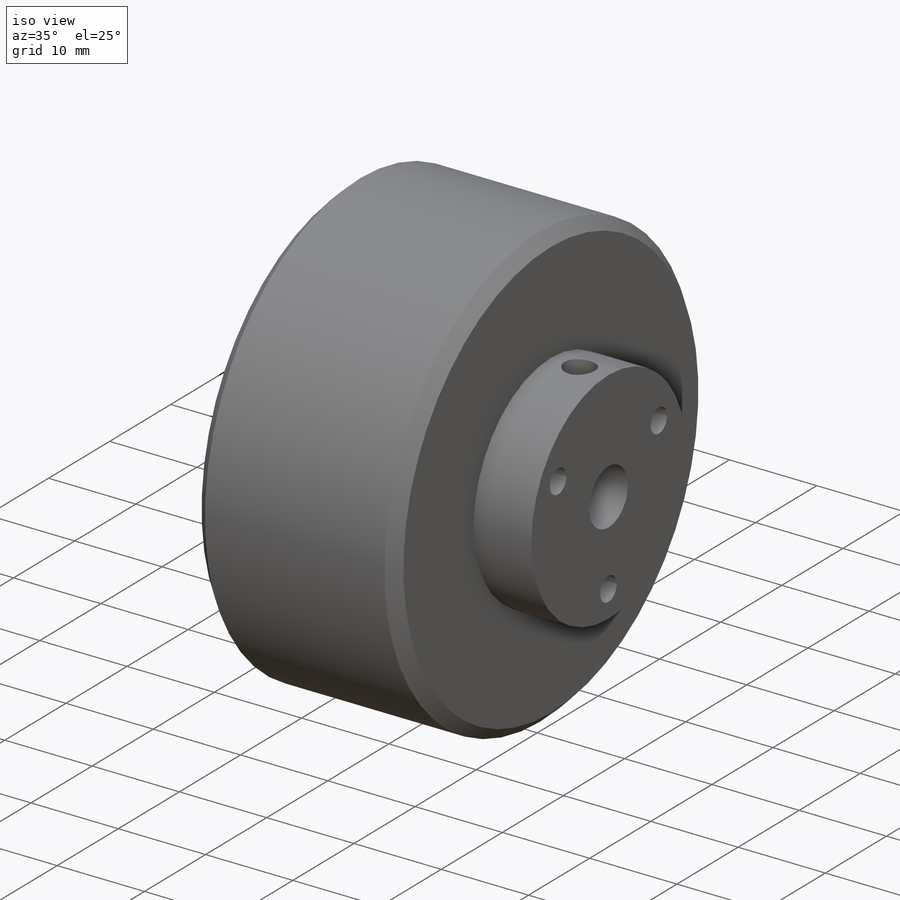
[diagram: iso view]
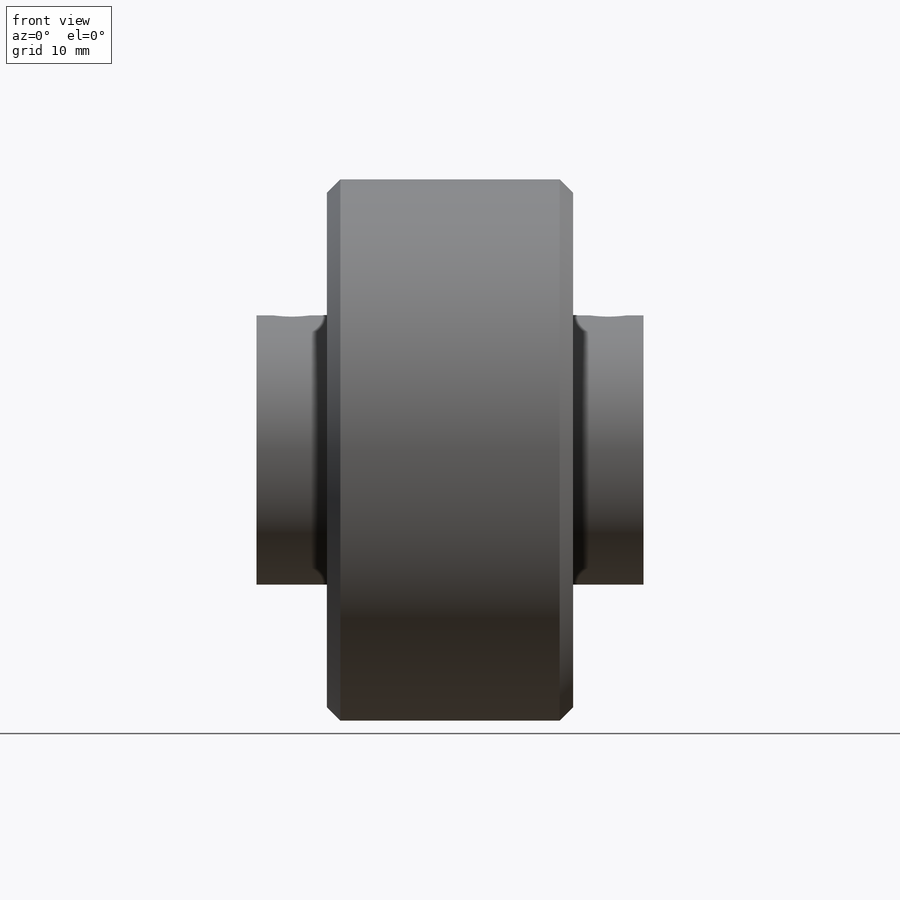
[diagram: front view]
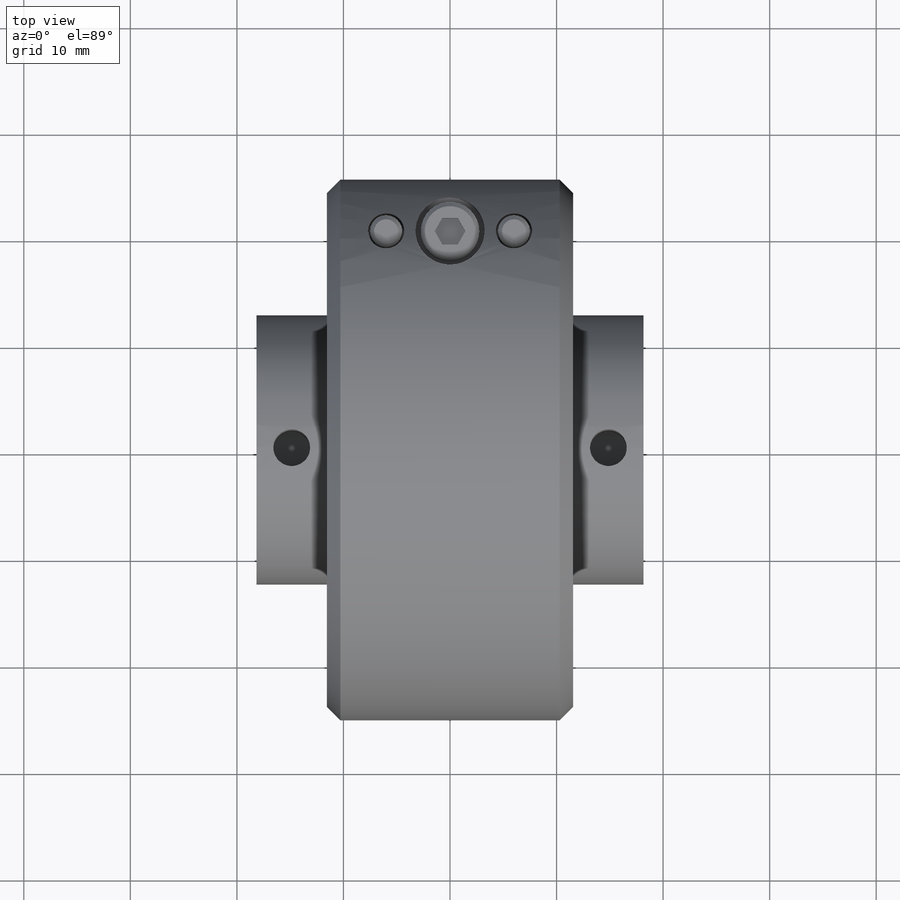
[diagram: top view]
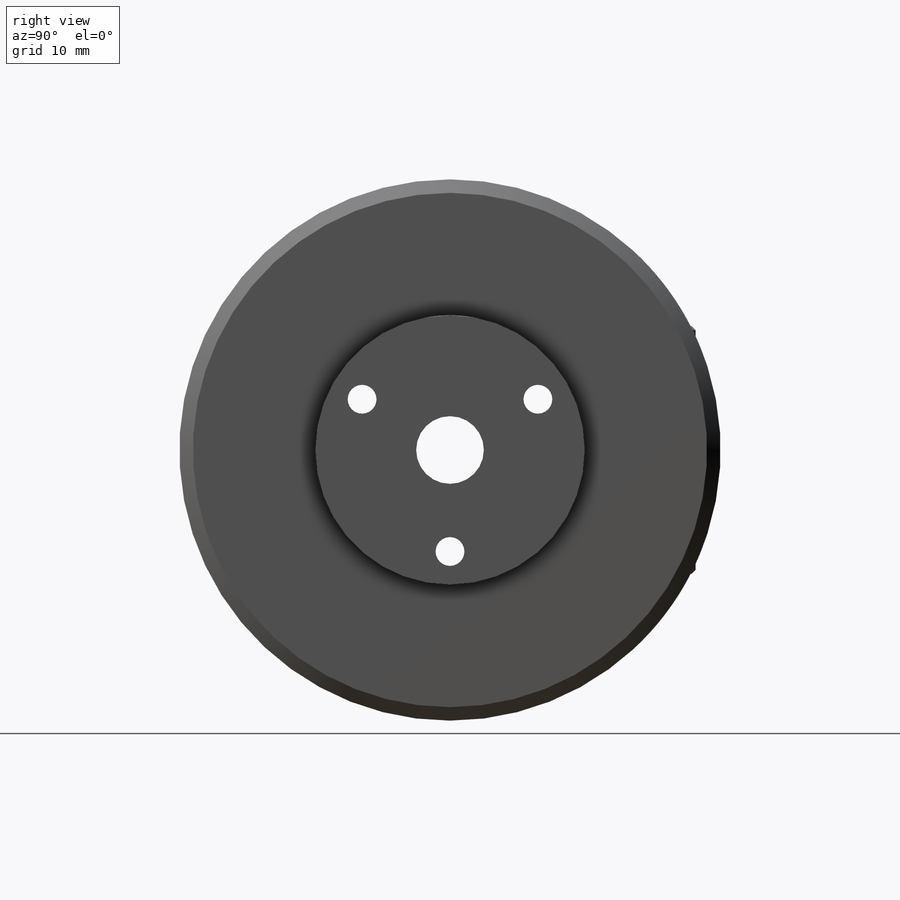
[diagram: right view]
SOLIDWORKS PART (.sldprt)
format: sldprt  version: not decoded by parser v0  size: 464,384 bytes
history: native  units: mm
features: sketch x12, thread x5, cut_extrude x3, hole x2, chamfer x2, cut_revolve x2, mirror x2, extrude x2, material x1, revolve x1, plane x1, pattern_linear x1, delete_body x1 (+16 scaffold rows collapsed)
feature tree (51):
  scaffold x16  (default folders/planes/origin — collapsed)
  material  "Material <not specified>"
  sketch  "Sketch1"  dims[D1=23.114mm D2=36.322mm D3=25.4mm D4=12.6365mm D5=6.604mm]
  revolve  "Hub"  Angle=360deg
  sketch  "Sketch2"  dims[D1=6.35mm]
  cut_extrude  "Bore"  [1 undecoded]
  hole  "Face Mount Screws"  Diameter=2.7051mm Depth=36.322mm
  sketch  "Sketch4"  dims[D1=19.05mm]
  sketch  "Sketch3"  dims[hole-wizard template sketch: 60 standard entries collapsed; hole parameters kept: c18.Thru Tap Drill Depth=36.322mm]
  thread  "Hole Thread1"  Diameter=3.5052mm  [1 undecoded]
  thread  "Hole Thread2"  Diameter=3.5052mm  [1 undecoded]
  thread  "Hole Thread3"  Diameter=3.5052mm  [1 undecoded]
  hole  "Set Screws"  Diameter=3.4544mm Depth=25.4mm
  sketch  "Sketch6"
  sketch  "Sketch5"  dims[hole-wizard template sketch: 60 standard entries collapsed; hole parameters kept: c18.Thru Tap Drill Depth=25.4mm]
  thread  "Hole Thread4"  Diameter=4.1656mm  [1 undecoded]
  thread  "Hole Thread5"  Diameter=4.1656mm  [1 undecoded]
  chamfer  "Chamfer1"  Distance=1.27mm Angle=45deg
  plane  "Locking Screws"  Offset=20.32mm
  sketch  "Sketch12"  dims[D1=3.25mm D2=1.7mm D3=7.62mm]
  cut_revolve  "Cut-Revolve1"  Angle=360deg
  sketch  "Sketch14"
  cut_revolve  "Cut-Revolve2"  Angle=360deg
  mirror  "Mirror2"
  sketch  "Sketch15"  dims[D1=3.0mm]
  extrude  "Boss-Extrude1"  Depth=1mm
  sketch  "Sketch16"  dims[D1=5.5mm]
  extrude  "Boss-Extrude2"  Depth=3mm
  chamfer  "Chamfer2"  Distance=0.381mm Angle=45deg
  sketch  "Sketch17"  dims[D1=2.5mm]
  cut_extrude  "Cut-Extrude2"  Depth=2mm
  pattern_linear  "LPattern2"  Count1=2 Count2=2 Spacing1=6mm Spacing2=6mm
  mirror  "Mirror4"
  delete_body  "Body-Delete1"
  sketch  "Sketch18"
  cut_extrude  "Cut-Extrude3"  Depth=0.127mm
decode coverage: 26 of 33 modeling features carry decoded parameters
note: ~ marks probable driven/reference dimensions
note: 6 parameter values undecoded
note: suppression state not decoded; provenance and decode notes live in map.json
